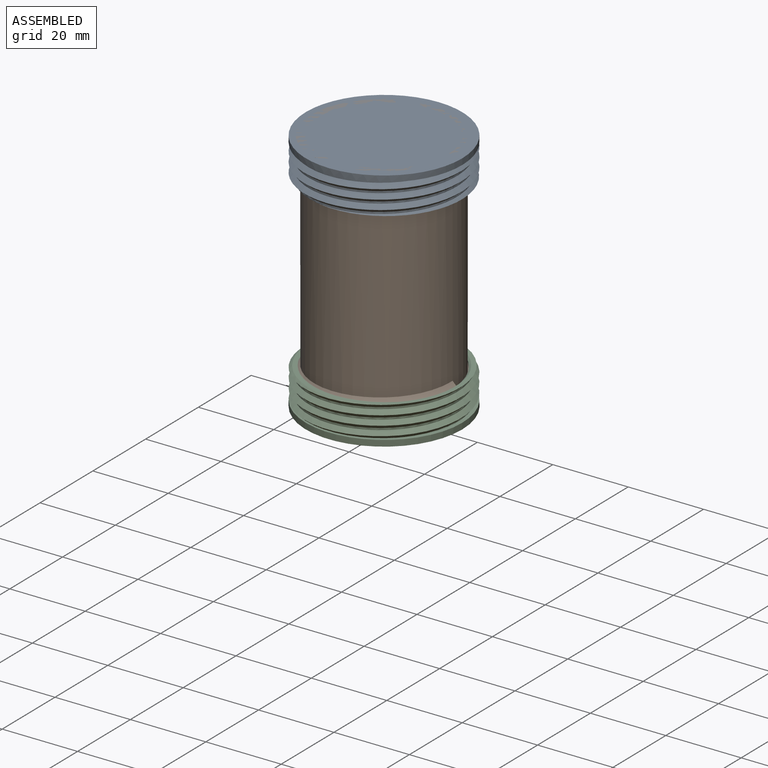
[diagram: assembled view]
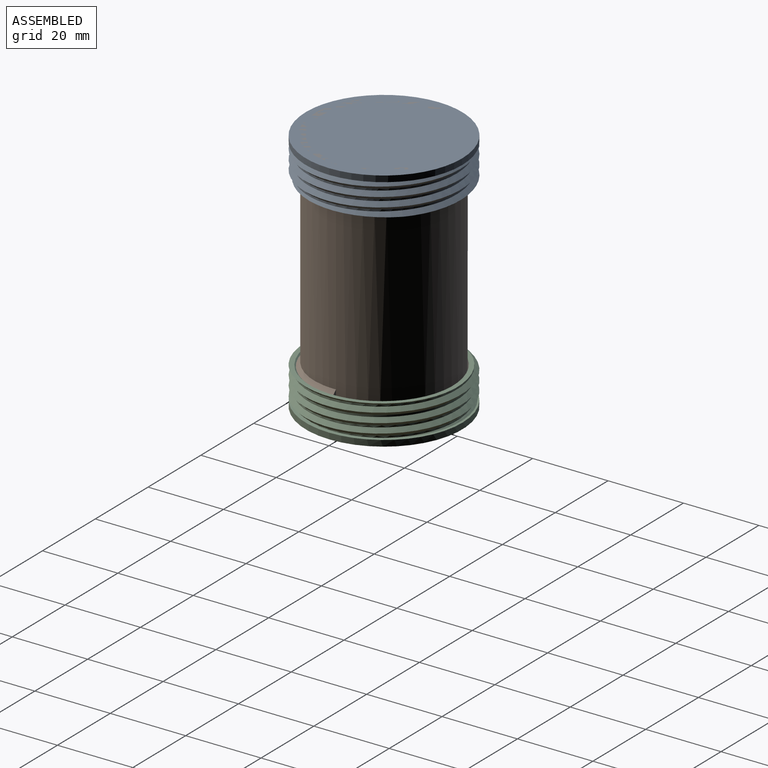
[diagram: assembled view, second angle]
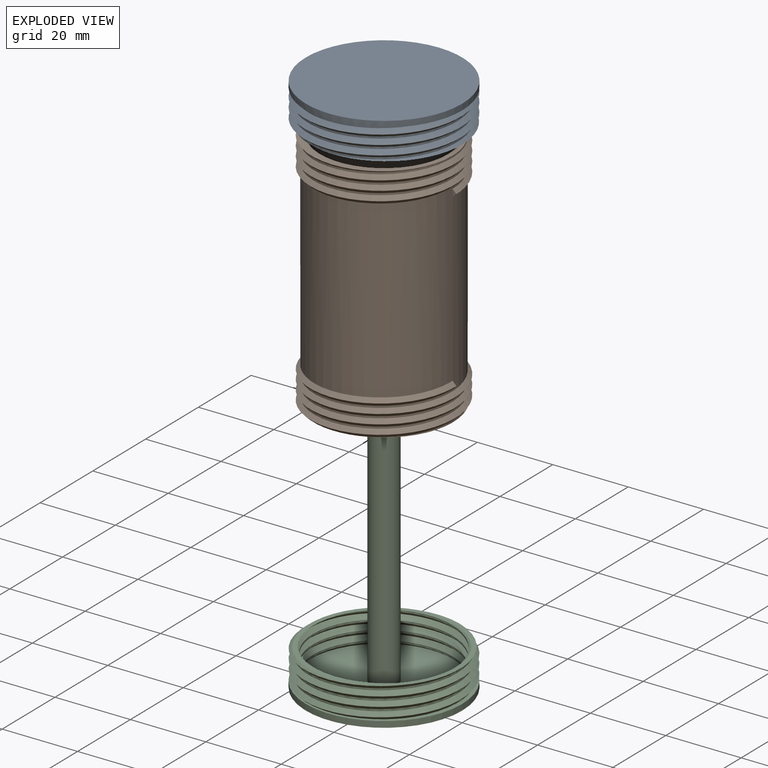
[diagram: exploded view]
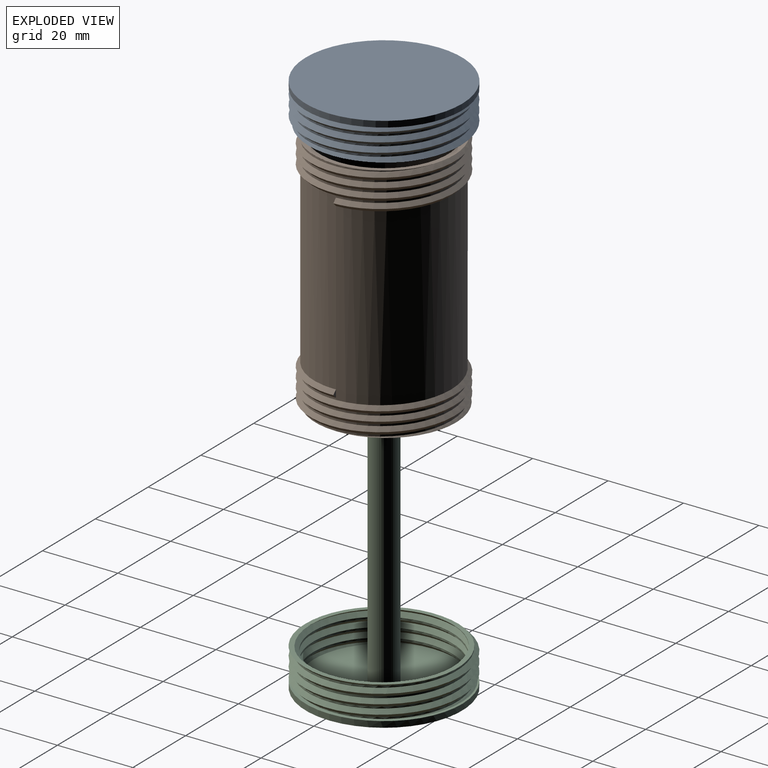
[diagram: exploded view, second angle]
ASSEMBLY  parts=3 mates=2
PART A: 17 faces, bbox 42.4x48.8x12.2 mm
  f0: plane 42.36x42.36mm, normal (0,0,1), area 83.8mm2, adj f2,f3,f4,f10
  f1: plane 41.49x41.49mm, normal (0,0,-1), area 1352mm2, adj f10
  f2: bspline ~47.91x41.49mm, area 626.5mm2, adj f0,f3,f4,f5
  f3: bspline ~47.91x41.49mm, area 649.2mm2, adj f0,f2,f4,f5
  f4: cylinder r=19.65mm len=39.3mm, axis (0,0,1), area 214.4mm2, adj f0,f2,f3,f5
  f5: plane 41x40.93mm, normal (0,0,1), area 147mm2, adj f2,f3,f4,f6,f7,f8
  f6: bspline ~45.14x39.09mm, area 610.8mm2, adj f5,f7,f8,f9
  f7: bspline ~45.14x39.09mm, area 586.5mm2, adj f5,f6,f8,f9
  f8: cylinder r=18.45mm len=36.9mm, axis (0,0,1), area 201.3mm2, adj f5,f6,f7,f9
  f9: plane 38.81x38.6mm, normal (0,0,1), area 1042.7mm2, adj f6,f7,f8,f13
  f10: cylinder r=20.74mm len=41.49mm, axis (0,0,1), area 208.6mm2, adj f0,f1
  f11: cylinder r=3.8mm len=7.6mm, axis (0,0,1), area 57.3mm2, adj f14,f16
  f12: plane 9.2x9.2mm, normal (0,0,1), area 11.1mm2, adj f15,f16
  f13: cylinder r=5mm len=10mm, axis (0,0,1), area 75.4mm2, adj f9,f15
  f14: plane 7.6x7.6mm, normal (0,0,1), area 45.4mm2, adj f11
  f15: cone r=4.6mm half-angle=45deg, axis (0,0,-1), area 17.1mm2, adj f12,f13
  f16: cone r=3.8mm half-angle=45deg, axis (0,0,1), area 14.2mm2, adj f11,f12
PART B: 18 faces, bbox 39.2x45.1x67.1 mm
  f0: bspline ~44.34x38.4mm, area 565.4mm2, adj f1,f2,f8,f9,f10,f11,f14
  f1: bspline ~44.34x38.4mm, area 630mm2, adj f0,f2,f7,f9,f10,f11,f14
  f2: plane 37.97x37.96mm, normal (0,0,1), area 179.3mm2, adj f0,f1,f8,f13
  f3: cylinder r=18.2mm len=17.36mm, axis (0,0,1), area 5.8mm2, adj f4,f12,f15
  f4: cylinder r=18.2mm len=36.4mm, axis (0,0,1), area 57.1mm2, adj f3,f5,f15,f16
  f5: cylinder r=18.2mm len=36.4mm, axis (0,0,1), area 57.2mm2, adj f4,f6,f15,f16
  f6: cylinder r=18.2mm len=36.4mm, axis (0,0,1), area 57.2mm2, adj f5,f7,f15,f16
  f7: cylinder r=18.2mm len=49mm, axis (0,0,1), area 5317.5mm2, adj f1,f6,f11,f14,f16,f17
  f8: cylinder r=18.2mm len=17.36mm, axis (0,0,1), area 5.8mm2, adj f0,f2,f9
  f9: cylinder r=18.2mm len=36.4mm, axis (0,0,1), area 57.2mm2, adj f0,f1,f8,f10
  f10: cylinder r=18.2mm len=36.4mm, axis (0,0,1), area 57.1mm2, adj f0,f1,f9,f11
  f11: cylinder r=18.2mm len=36.4mm, axis (0,0,1), area 57.2mm2, adj f0,f1,f7,f10
  f12: plane 37.97x37.96mm, normal (0,0,-1), area 179.2mm2, adj f3,f13,f15,f16
  f13: cylinder r=17mm len=64mm, axis (0,0,1), area 6836.1mm2, adj f2,f12
  f14: plane 2x1mm, normal (0,-1,0), area 1mm2, adj f0,f1,f7
  f15: bspline ~44.34x38.4mm, area 565.4mm2, adj f3,f4,f5,f6,f12,f16,f17
  f16: bspline ~44.34x38.4mm, area 630mm2, adj f4,f5,f6,f7,f12,f15,f17
  f17: plane 2x1mm, normal (0,1,0), area 1mm2, adj f7,f15,f16
PART C: 14 faces, bbox 42.4x48.8x65.7 mm
  f0: plane 42.36x42.36mm, normal (0,0,1), area 83.8mm2, adj f2,f3,f4,f10
  f1: plane 41.49x41.49mm, normal (0,0,-1), area 1352mm2, adj f10
  f2: bspline ~47.91x41.49mm, area 626.5mm2, adj f0,f3,f4,f5
  f3: bspline ~47.91x41.49mm, area 649.2mm2, adj f0,f2,f4,f5
  f4: cylinder r=19.65mm len=39.3mm, axis (0,0,1), area 214.4mm2, adj f0,f2,f3,f5
  f5: plane 41x40.93mm, normal (0,0,1), area 147mm2, adj f2,f3,f4,f6,f7,f8
  f6: bspline ~45.14x39.09mm, area 610.8mm2, adj f5,f7,f8,f9
  f7: bspline ~45.14x39.09mm, area 586.5mm2, adj f5,f6,f8,f9
  f8: cylinder r=18.45mm len=36.9mm, axis (0,0,1), area 201.3mm2, adj f5,f6,f7,f9
  f9: plane 38.81x38.6mm, normal (0,0,1), area 1080.5mm2, adj f6,f7,f8,f11
  f10: cylinder r=20.74mm len=41.49mm, axis (0,0,1), area 208.6mm2, adj f0,f1
  f11: cylinder r=3.6mm len=62.8mm, axis (0,0,1), area 1420.5mm2, adj f9,f13
  f12: plane 6.4x6.4mm, normal (0,0,1), area 32.2mm2, adj f13
  f13: cone r=3.2mm half-angle=45deg, axis (0,0,-1), area 12.1mm2, adj f11,f12
PLACE A rot(axis=(1,0,0),180deg) t=(17.34,22.75,50.59)mm
PLACE B t=(17.34,22.75,-11.81)mm
PLACE C t=(17.34,22.75,-11.21)mm
MATE cylindrical A.f4 <-> B.f3  axis (0,0,-1) through (17.34,22.75,51.39)mm
MATE cylindrical B.f3 <-> C.f4  axis (0,0,1) through (17.34,22.75,20.19)mm
